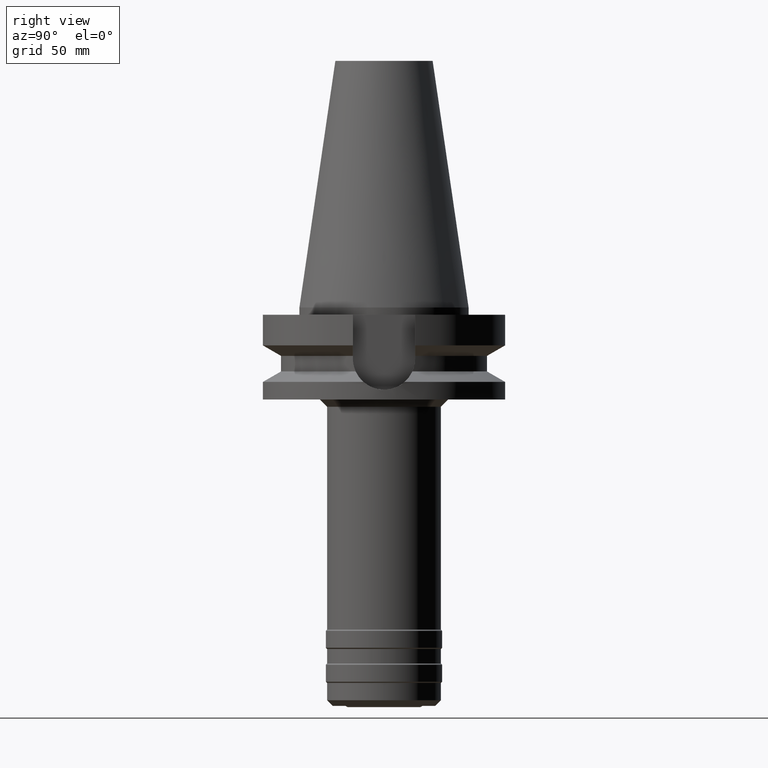
[diagram: clean part render]
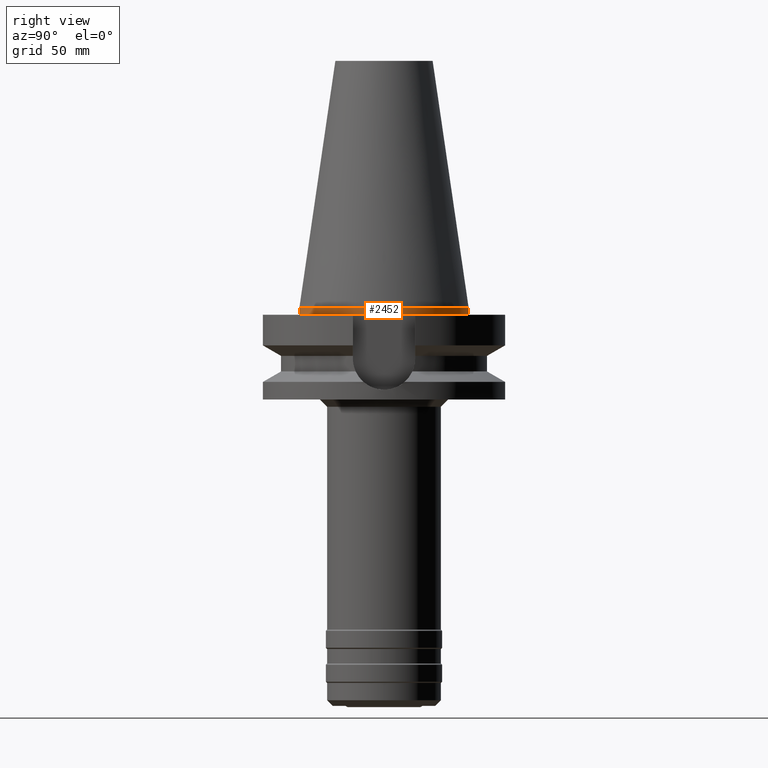
[diagram: same view with one face highlighted and labeled with its STEP entity id]
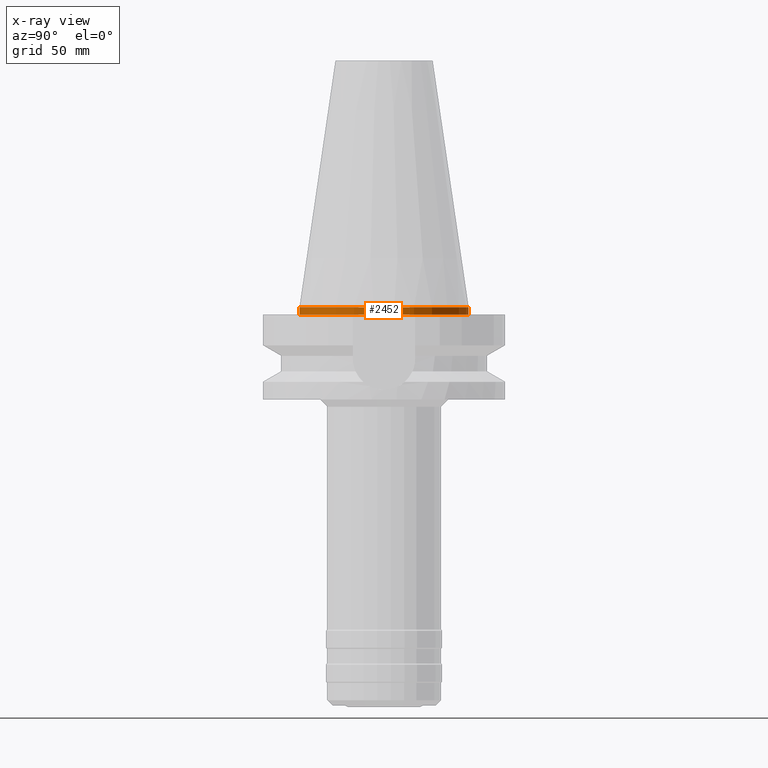
[diagram: x-ray of the same camera — body ghosted, the highlighted face saturated]
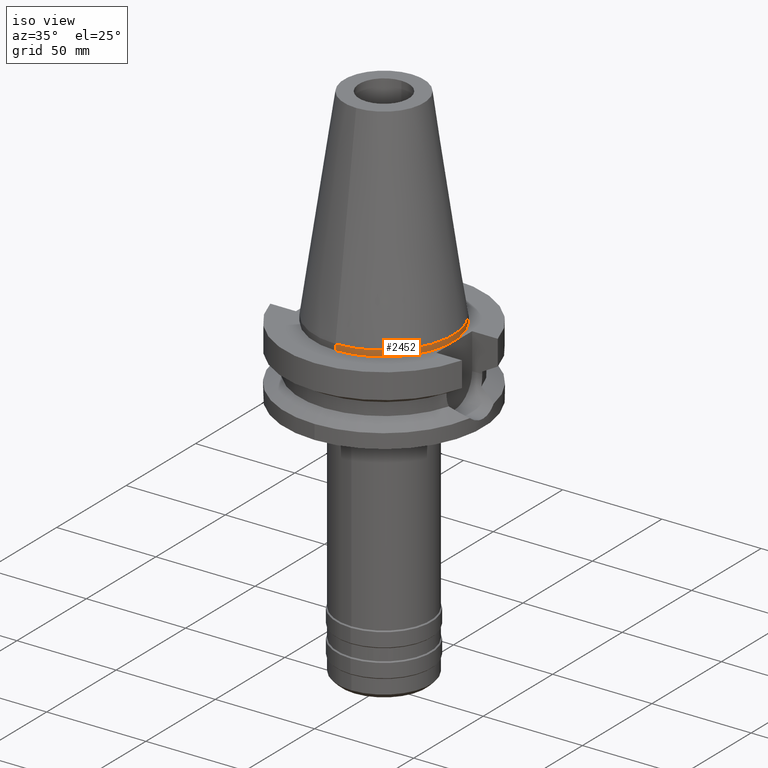
[diagram: same view with one face highlighted and labeled with its STEP entity id]
A machine part, right view. The second image highlights one B-rep face of the part: STEP entity #2452.
The next image is the same camera in x-ray: the body ghosted, the highlighted face saturated — about 0% of this face is hidden behind the body in this view.
A second angle (iso view) of the same face is appended — the face is thin or edge-on in the first view.
In plain terms, the highlighted cylindrical surface (partial cylindrical patch) has radius 34.925 mm, axis along (0, 0, -1).
Its self-contained STEP definition (entity closure, byte-faithful):
#993=CARTESIAN_POINT('',(0.E0,2.634705123686E-14,-3.E0));
#994=DIRECTION('',(0.E0,0.E0,1.E0));
#995=DIRECTION('',(0.E0,-1.E0,0.E0));
#996=AXIS2_PLACEMENT_3D('',#993,#994,#995);
#1202=DIRECTION('',(0.E0,-2.084258691563E-13,-1.E0));
#1203=VECTOR('',#1202,3.000000000001E0);
#1204=CARTESIAN_POINT('',(0.E0,3.4925E1,5.471179065353E-13));
#1205=LINE('',#1204,#1203);
#1209=DIRECTION('',(0.E0,2.107943449421E-13,-1.E0));
#1210=VECTOR('',#1209,3.000000000001E0);
#1211=CARTESIAN_POINT('',(0.E0,-3.4925E1,5.471179065353E-13));
#1212=LINE('',#1211,#1210);
#1238=CARTESIAN_POINT('',(0.E0,1.847992019913E-14,6.252776074689E-13));
#1239=DIRECTION('',(0.E0,0.E0,-1.E0));
#1240=DIRECTION('',(0.E0,1.E0,0.E0));
#1241=AXIS2_PLACEMENT_3D('',#1238,#1239,#1240);
#1451=CARTESIAN_POINT('',(0.E0,-3.4925E1,-3.E0));
#1452=CARTESIAN_POINT('',(0.E0,3.4925E1,-3.E0));
#1453=VERTEX_POINT('',#1451);
#1454=VERTEX_POINT('',#1452);
#1455=CARTESIAN_POINT('',(0.E0,3.4925E1,5.471179065353E-13));
#1456=VERTEX_POINT('',#1455);
#1457=CARTESIAN_POINT('',(0.E0,-3.4925E1,5.471179065353E-13));
#1458=VERTEX_POINT('',#1457);
#2438=CARTESIAN_POINT('',(0.E0,2.634705123686E-14,1.1514E2));
#2439=DIRECTION('',(0.E0,0.E0,-1.E0));
#2440=DIRECTION('',(0.E0,-1.E0,0.E0));
#2441=AXIS2_PLACEMENT_3D('',#2438,#2439,#2440);
#2442=CYLINDRICAL_SURFACE('',#2441,3.4925E1);
#2444=ORIENTED_EDGE('',*,*,#2443,.T.);
#2445=ORIENTED_EDGE('',*,*,#2288,.F.);
#2447=ORIENTED_EDGE('',*,*,#2446,.F.);
#2449=ORIENTED_EDGE('',*,*,#2448,.F.);
#2450=EDGE_LOOP('',(#2444,#2445,#2447,#2449));
#2451=FACE_OUTER_BOUND('',#2450,.F.);
#997=CIRCLE('',#996,3.4925E1);
#1242=CIRCLE('',#1241,3.4925E1);
#2288=EDGE_CURVE('',#1453,#1454,#997,.T.);
#2443=EDGE_CURVE('',#1456,#1454,#1205,.T.);
#2446=EDGE_CURVE('',#1458,#1453,#1212,.T.);
#2448=EDGE_CURVE('',#1456,#1458,#1242,.T.);
#2452=ADVANCED_FACE('',(#2451),#2442,.T.);